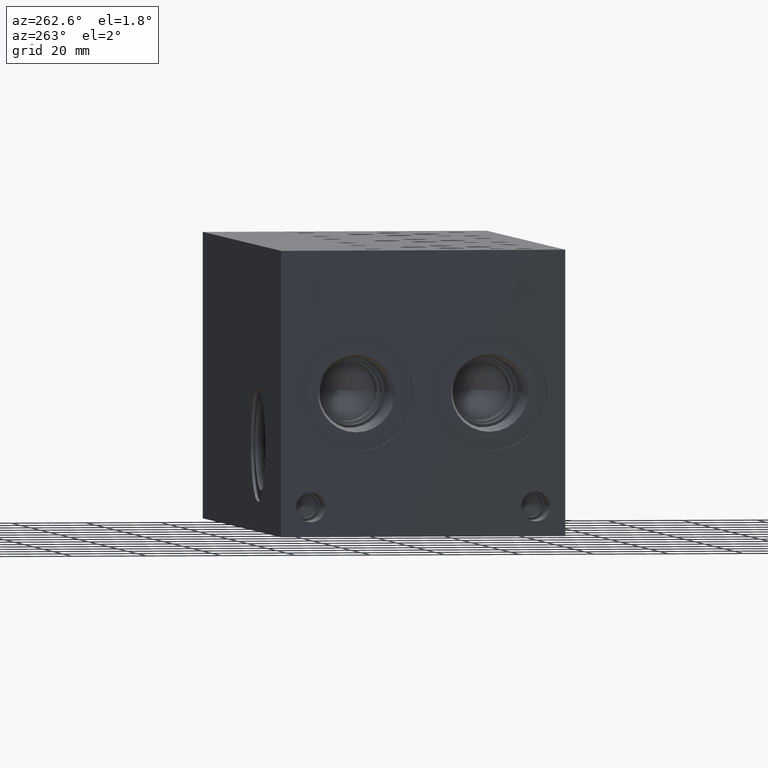
[diagram: clean part render]
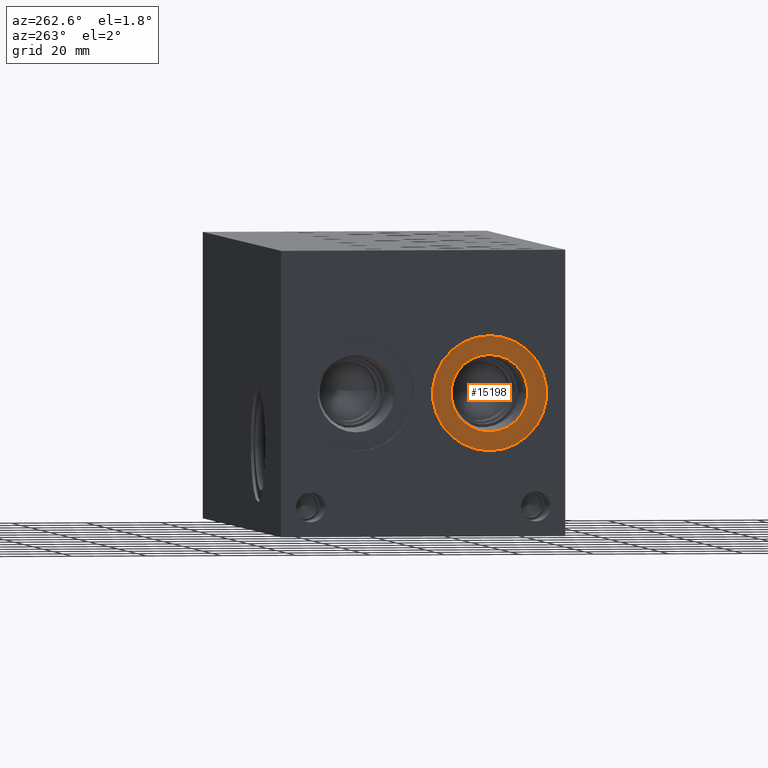
[diagram: same view with one face highlighted and labeled with its STEP entity id]
A machine part, auxiliary view. The second image highlights one B-rep face of the part: STEP entity #15198.
In plain terms, the highlighted planar face has unit normal (1, 0, 0).
Its self-contained STEP definition (entity closure, byte-faithful):
#577=CIRCLE('',#16174,15.3162);
#578=CIRCLE('',#16175,15.3162);
#579=CIRCLE('',#16177,10.2997);
#580=CIRCLE('',#16178,10.2997);
#715=FACE_BOUND('',#3002,.T.);
#2111=FACE_OUTER_BOUND('',#3001,.T.);
#3001=EDGE_LOOP('',(#13307,#13308));
#3002=EDGE_LOOP('',(#13309,#13310));
#7104=VERTEX_POINT('',#26411);
#7105=VERTEX_POINT('',#26413);
#7106=VERTEX_POINT('',#26417);
#7107=VERTEX_POINT('',#26418);
#9207=EDGE_CURVE('',#7104,#7105,#577,.T.);
#9208=EDGE_CURVE('',#7105,#7104,#578,.T.);
#9209=EDGE_CURVE('',#7106,#7107,#579,.T.);
#9210=EDGE_CURVE('',#7107,#7106,#580,.T.);
#13307=ORIENTED_EDGE('',*,*,#9208,.F.);
#13308=ORIENTED_EDGE('',*,*,#9207,.F.);
#13309=ORIENTED_EDGE('',*,*,#9209,.T.);
#13310=ORIENTED_EDGE('',*,*,#9210,.T.);
#13891=PLANE('',#16176);
#15198=ADVANCED_FACE('',(#2111,#715),#13891,.F.);
#16174=AXIS2_PLACEMENT_3D('',#26414,#19397,#19398);
#16175=AXIS2_PLACEMENT_3D('',#26415,#19399,#19400);
#16176=AXIS2_PLACEMENT_3D('',#26416,#19401,#19402);
#16177=AXIS2_PLACEMENT_3D('',#26419,#19403,#19404);
#16178=AXIS2_PLACEMENT_3D('',#26420,#19405,#19406);
#19397=DIRECTION('center_axis',(1.,0.,0.));
#19398=DIRECTION('ref_axis',(0.,0.,-1.));
#19399=DIRECTION('center_axis',(1.,0.,0.));
#19400=DIRECTION('ref_axis',(0.,0.,-1.));
#19401=DIRECTION('center_axis',(1.,0.,0.));
#19402=DIRECTION('ref_axis',(0.,0.,-1.));
#19403=DIRECTION('center_axis',(1.,0.,0.));
#19404=DIRECTION('ref_axis',(0.,0.,-1.));
#19405=DIRECTION('center_axis',(1.,0.,0.));
#19406=DIRECTION('ref_axis',(0.,0.,-1.));
#26411=CARTESIAN_POINT('',(0.7874,20.2438,22.7838));
#26413=CARTESIAN_POINT('',(0.7874,20.2438,53.4162));
#26414=CARTESIAN_POINT('Origin',(0.7874,20.2438,38.1));
#26415=CARTESIAN_POINT('Origin',(0.7874,20.2438,38.1));
#26416=CARTESIAN_POINT('Origin',(0.7874,20.2438,48.3997));
#26417=CARTESIAN_POINT('',(0.7874,20.2438,48.3997));
#26418=CARTESIAN_POINT('',(0.787400000000001,20.2438,27.8003));
#26419=CARTESIAN_POINT('Origin',(0.7874,20.2438,38.1));
#26420=CARTESIAN_POINT('Origin',(0.7874,20.2438,38.1));